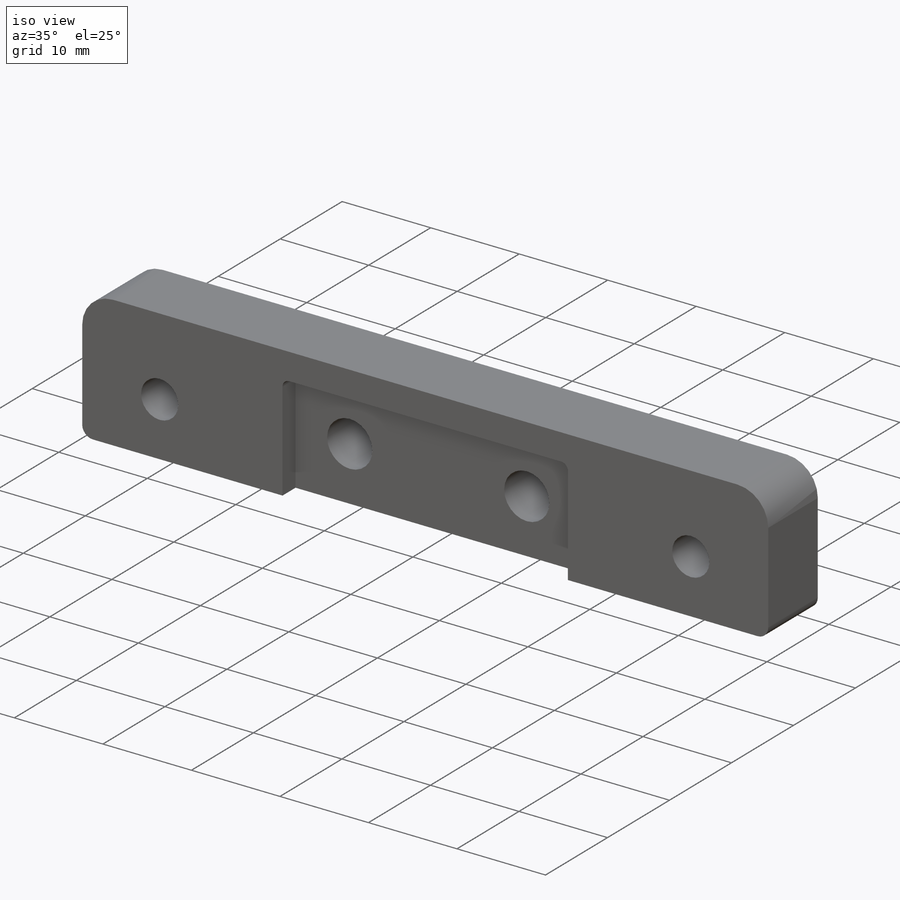
[diagram: iso view]
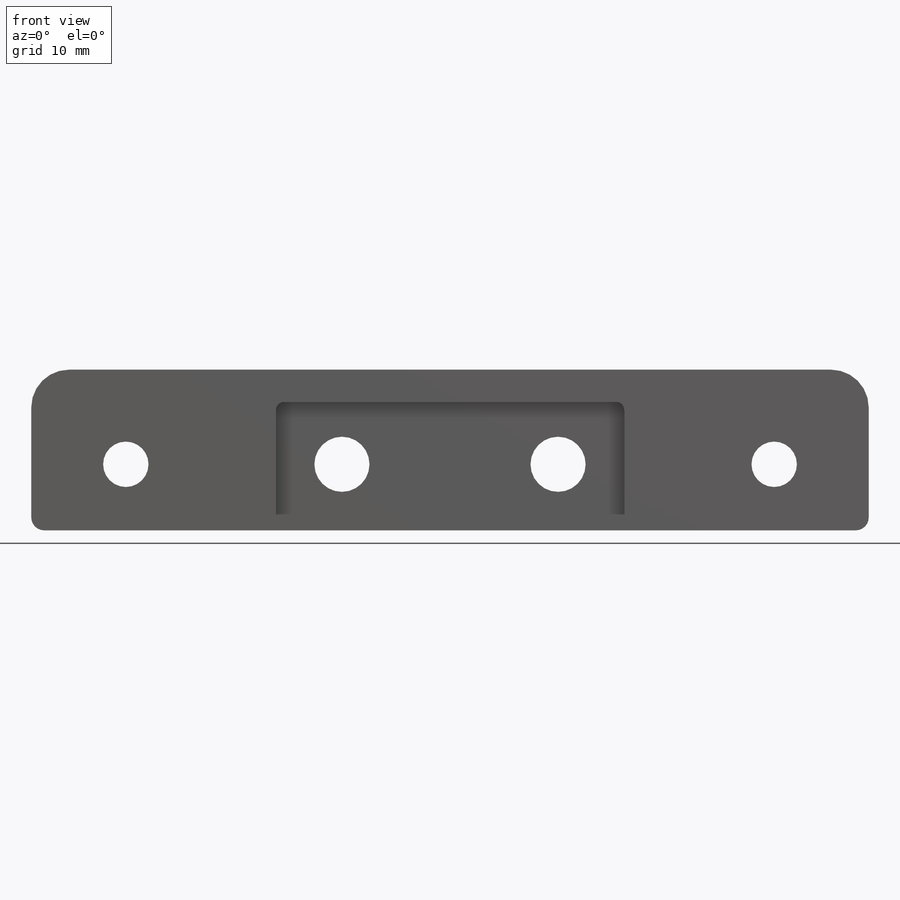
[diagram: front view]
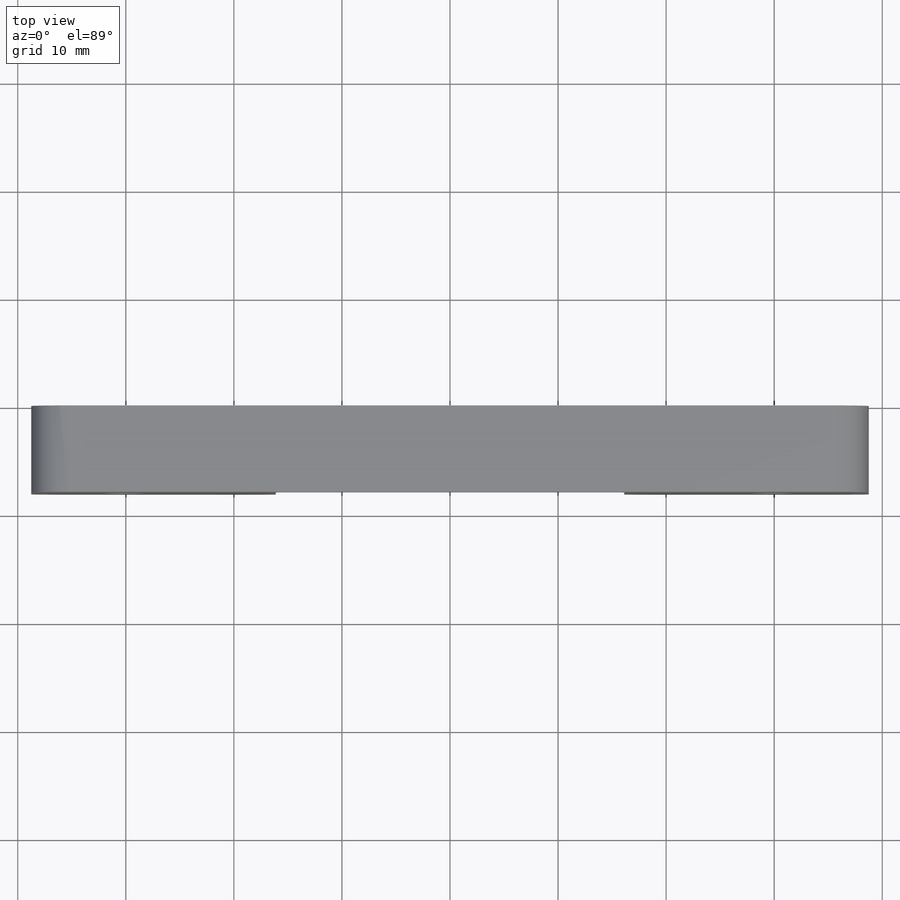
[diagram: top view]
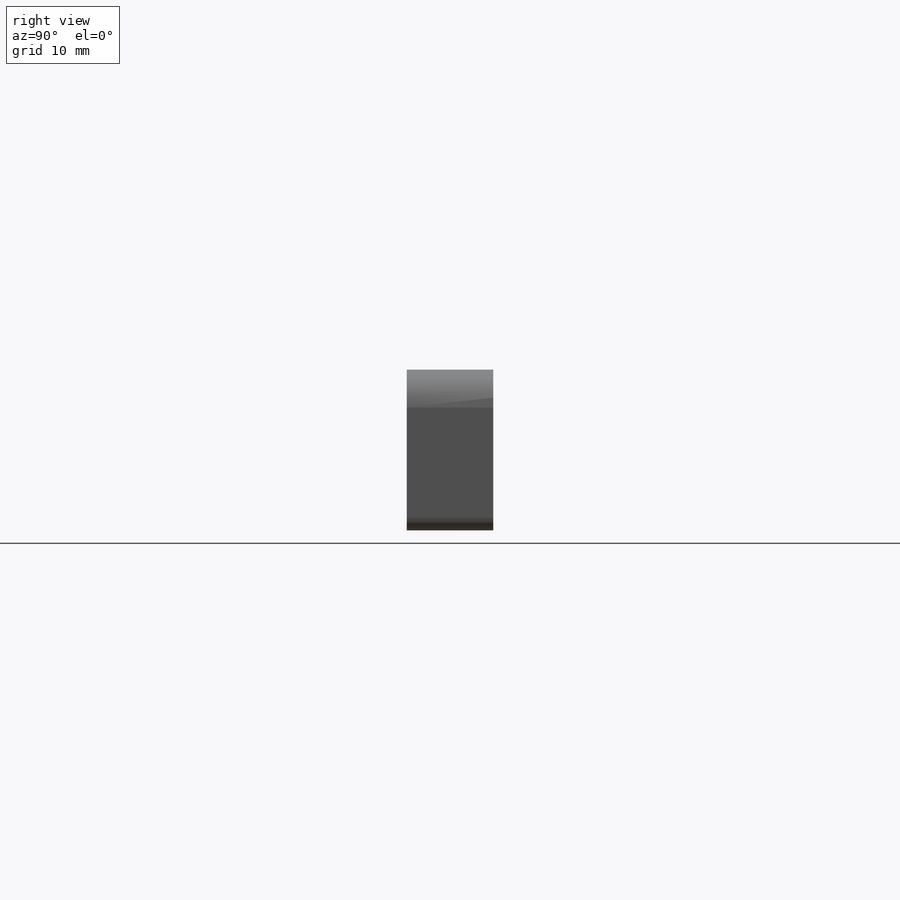
[diagram: right view]
SOLIDWORKS PART (.sldprt)
format: sldprt  version: not decoded by parser v0  size: 225,792 bytes
history: native  units: mm
features: sketch x5, fillet x3, cut_extrude x2, material x1, extrude x1, hole x1 (+13 scaffold rows collapsed)
feature tree (26):
  scaffold x13  (default folders/planes/origin — collapsed)
  material  "6061-T6 (SS)"
  sketch  "Sketch1"  dims[D2=5.0mm D1=14.874mm D3=77.5mm]
  extrude  "Boss-Extrude1"  Depth=8mm
  sketch  "Sketch2"  dims[D1=32.24mm D2=11.877mm]
  cut_extrude  "Cut-Extrude1"  Depth=2.1mm
  fillet  "Fillet1"  Radius=3.5mm
  fillet  "Fillet2"  Radius=0.75mm
  sketch  "Sketch3"  dims[D1=5.1mm D2=20.0mm D3=8.76mm]
  cut_extrude  "Cut-Extrude2"  [1 undecoded]
  hole  "M5x0.8 Tapped Hole1"  Diameter=4.2mm Depth=8mm
  sketch  "Sketch5"  dims[D1=60.0mm D2=8.76mm]
  sketch  "Sketch4"  dims[hole-wizard template sketch: 60 standard entries collapsed; hole parameters kept: c18.Thru Tap Drill Depth=8.0mm]
  fillet  "Fillet3"  Radius=1.2mm
decode coverage: 11 of 12 modeling features carry decoded parameters
note: ~ marks probable driven/reference dimensions
note: 1 parameter value undecoded
note: suppression state not decoded; provenance and decode notes live in map.json
